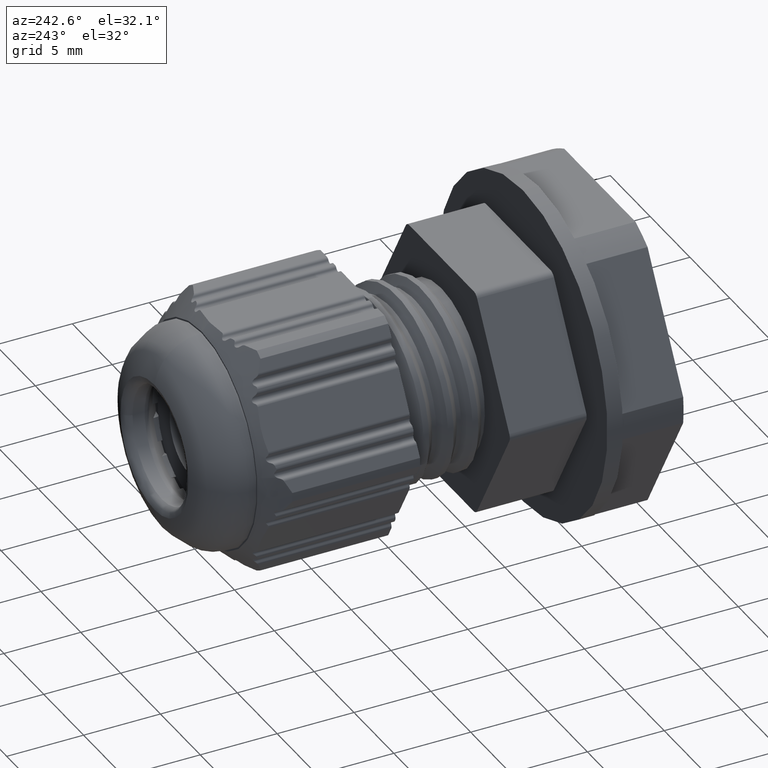
[diagram: clean part render]
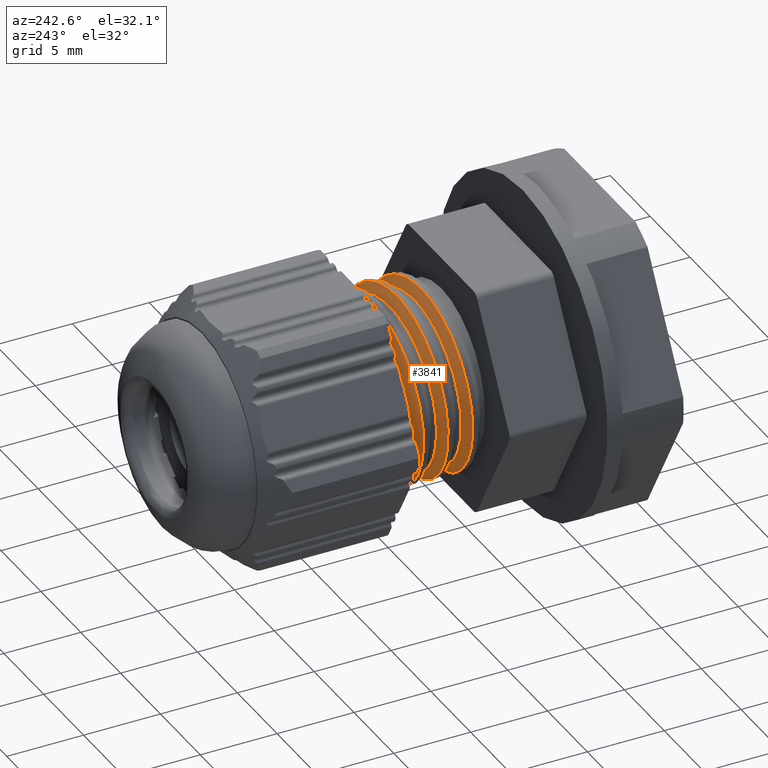
[diagram: same view with one face highlighted and labeled with its STEP entity id]
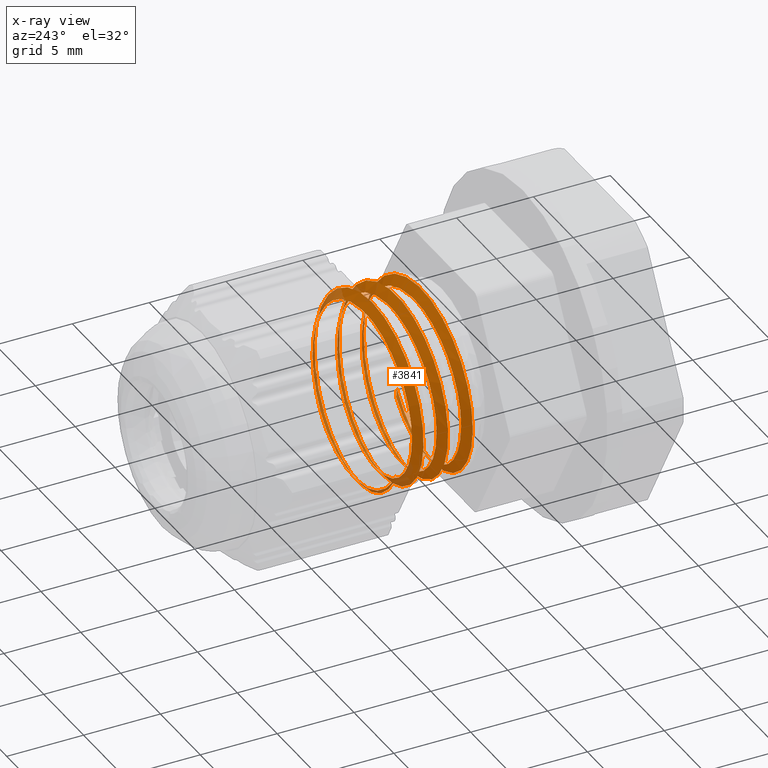
[diagram: x-ray of the same camera — body ghosted, the highlighted face saturated]
A machine part, auxiliary view. The second image highlights one B-rep face of the part: STEP entity #3841.
The next image is the same camera in x-ray: the body ghosted, the highlighted face saturated — about 19% of this face is hidden behind the body in this view.
In plain terms, the highlighted face is a freeform B-spline surface patch.
Its self-contained STEP definition (entity closure, byte-faithful):
#4 =( BOUNDED_SURFACE ( )  B_SPLINE_SURFACE ( 1, 2, ( 
 ( #10818, #10789, #10806, #10819, #10822, #10804, #10790, #10823, #10802, #10824, #10827, #10792, #10796, #10828, #10808, #10813, #10817, #10794, #10795, #10814, #10803, #10809, #10810, #10811, #10815, #10950, #10971, #11021, #11040, #10600, #10665, #10725, #10705, #10726, #10743, #10748, #9685, #9662, #9670, #9674, #9659, #9645, #9675, #9657, #9676, #9654, #9667, #9671, #9679, #9680, #9672, #9646, #9651, #9647, #9664, #9648, #9656, #9681, #9652, #9658, #9683, #9649, #9663, #9673, #9669, #9684, #9650, #9665, #9666, #9655, #9677, #9653, #9682, #9660, #9668, #9678, #9661, #9254, #9211, #9210, #9229, #9219, #9235, #9223, #9257, #9228, #9251, #9252, #9253, #9226, #9209, #9242, #9239, #9218, #9255, #9243, #9212 ),
 ( #9256, #9204, #9213, #9227, #9258, #9207, #9224, #9244, #9260, #9232, #9225, #9230, #9231, #9249, #9202, #9221, #9259, #9214, #9248, #9217, #9240, #9220, #9261, #9234, #9222, #9262, #9233, #9236, #9205, #9237, #9238, #9241, #9200, #9215, #9199, #9201, #9250, #9203, #9206, #9208, #9216, #9246, #9245, #9247, #9274, #9277, #9275, #9276, #9278, #9271, #9279, #9263, #9273, #9264, #9265, #9266, #9267, #9268, #9269, #9270, #9272, #9282, #9280, #9281, #9283, #9284, #9290, #9298, #9286, #9299, #9291, #9289, #9292, #9307, #9315, #9300, #9301, #9302, #9308, #9287, #9324, #9293, #9311, #9309, #9288, #9304, #9303, #9319, #9294, #9305, #9318, #9295, #9323, #9320, #9296, #9297, #9312 ) ),
 .UNSPECIFIED., .F., .F., .T. ) 
 B_SPLINE_SURFACE_WITH_KNOTS ( ( 2, 2 ),
 ( 3, 2, 2, 2, 2, 2, 2, 2, 2, 2, 2, 2, 2, 2, 2, 2, 2, 2, 2, 2, 2, 2, 2, 2, 2, 2, 2, 2, 2, 2, 2, 2, 2, 2, 2, 2, 2, 2, 2, 2, 2, 2, 2, 2, 2, 2, 2, 2, 3 ),
 ( 0.0000000000000000000, 1.000000000000000000 ),
 ( 0.0000000000000000000, 0.02083333333333333200, 0.04166666666666666400, 0.06250000000000000000, 0.08333333333333332900, 0.1041666666666666700, 0.1250000000000000000, 0.1458333333333333400, 0.1666666666666666600, 0.1875000000000000000, 0.2083333333333333400, 0.2291666666666666600, 0.2500000000000000000, 0.2708333333333333100, 0.2916666666666666900, 0.3125000000000000000, 0.3333333333333333100, 0.3541666666666666900, 0.3750000000000000000, 0.3958333333333333100, 0.4166666666666666900, 0.4375000000000000000, 0.4583333333333333100, 0.4791666666666666900, 0.5000000000000000000, 0.5208333333333333700, 0.5416666666666666300, 0.5625000000000000000, 0.5833333333333333700, 0.6041666666666666300, 0.6250000000000000000, 0.6458333333333333700, 0.6666666666666666300, 0.6875000000000000000, 0.7083333333333333700, 0.7291666666666666300, 0.7500000000000000000, 0.7708333333333333700, 0.7916666666666666300, 0.8125000000000000000, 0.8333333333333333700, 0.8541666666666666300, 0.8750000000000000000, 0.8958333333333333700, 0.9166666666666666300, 0.9375000000000000000, 0.9583333333333333700, 0.9791666666666666300, 1.000000000000000000 ),
 .UNSPECIFIED. ) 
 GEOMETRIC_REPRESENTATION_ITEM ( )  RATIONAL_B_SPLINE_SURFACE ( (
 ( 1.000000000000000000, 0.9238795325112867400, 1.000000000000000000, 0.9238795325112867400, 1.000000000000000000, 0.9238795325112867400, 1.000000000000000000, 0.9238795325112867400, 1.000000000000000000, 0.9238795325112867400, 1.000000000000000000, 0.9238795325112867400, 1.000000000000000000, 0.9238795325112867400, 1.000000000000000000, 0.9238795325112867400, 1.000000000000000000, 0.9238795325112867400, 1.000000000000000000, 0.9238795325112867400, 1.000000000000000000, 0.9238795325112867400, 1.000000000000000000, 0.9238795325112867400, 1.000000000000000000, 0.9238795325112867400, 1.000000000000000000, 0.9238795325112867400, 1.000000000000000000, 0.9238795325112867400, 1.000000000000000000, 0.9238795325112867400, 1.000000000000000000, 0.9238795325112867400, 1.000000000000000000, 0.9238795325112867400, 1.000000000000000000, 0.9238795325112867400, 1.000000000000000000, 0.9238795325112867400, 1.000000000000000000, 0.9238795325112867400, 1.000000000000000000, 0.9238795325112867400, 1.000000000000000000, 0.9238795325112867400, 1.000000000000000000, 0.9238795325112867400, 1.000000000000000000, 0.9238795325112867400, 1.000000000000000000, 0.9238795325112867400, 1.000000000000000000, 0.9238795325112867400, 1.000000000000000000, 0.9238795325112867400, 1.000000000000000000, 0.9238795325112867400, 1.000000000000000000, 0.9238795325112867400, 1.000000000000000000, 0.9238795325112867400, 1.000000000000000000, 0.9238795325112867400, 1.000000000000000000, 0.9238795325112867400, 1.000000000000000000, 0.9238795325112867400, 1.000000000000000000, 0.9238795325112867400, 1.000000000000000000, 0.9238795325112867400, 1.000000000000000000, 0.9238795325112867400, 1.000000000000000000, 0.9238795325112867400, 1.000000000000000000, 0.9238795325112867400, 1.000000000000000000, 0.9238795325112867400, 1.000000000000000000, 0.9238795325112867400, 1.000000000000000000, 0.9238795325112867400, 1.000000000000000000, 0.9238795325112867400, 1.000000000000000000, 0.9238795325112867400, 1.000000000000000000, 0.9238795325112867400, 1.000000000000000000, 0.9238795325112867400, 1.000000000000000000, 0.9238795325112867400, 1.000000000000000000, 0.9238795325112867400, 1.000000000000000000),
 ( 1.000000000000000000, 0.9238795325112867400, 1.000000000000000000, 0.9238795325112867400, 1.000000000000000000, 0.9238795325112867400, 1.000000000000000000, 0.9238795325112867400, 1.000000000000000000, 0.9238795325112867400, 1.000000000000000000, 0.9238795325112867400, 1.000000000000000000, 0.9238795325112867400, 1.000000000000000000, 0.9238795325112867400, 1.000000000000000000, 0.9238795325112867400, 1.000000000000000000, 0.9238795325112867400, 1.000000000000000000, 0.9238795325112867400, 1.000000000000000000, 0.9238795325112867400, 1.000000000000000000, 0.9238795325112867400, 1.000000000000000000, 0.9238795325112867400, 1.000000000000000000, 0.9238795325112867400, 1.000000000000000000, 0.9238795325112867400, 1.000000000000000000, 0.9238795325112867400, 1.000000000000000000, 0.9238795325112867400, 1.000000000000000000, 0.9238795325112867400, 1.000000000000000000, 0.9238795325112867400, 1.000000000000000000, 0.9238795325112867400, 1.000000000000000000, 0.9238795325112867400, 1.000000000000000000, 0.9238795325112867400, 1.000000000000000000, 0.9238795325112867400, 1.000000000000000000, 0.9238795325112867400, 1.000000000000000000, 0.9238795325112867400, 1.000000000000000000, 0.9238795325112867400, 1.000000000000000000, 0.9238795325112867400, 1.000000000000000000, 0.9238795325112867400, 1.000000000000000000, 0.9238795325112867400, 1.000000000000000000, 0.9238795325112867400, 1.000000000000000000, 0.9238795325112867400, 1.000000000000000000, 0.9238795325112867400, 1.000000000000000000, 0.9238795325112867400, 1.000000000000000000, 0.9238795325112867400, 1.000000000000000000, 0.9238795325112867400, 1.000000000000000000, 0.9238795325112867400, 1.000000000000000000, 0.9238795325112867400, 1.000000000000000000, 0.9238795325112867400, 1.000000000000000000, 0.9238795325112867400, 1.000000000000000000, 0.9238795325112867400, 1.000000000000000000, 0.9238795325112867400, 1.000000000000000000, 0.9238795325112867400, 1.000000000000000000, 0.9238795325112867400, 1.000000000000000000, 0.9238795325112867400, 1.000000000000000000, 0.9238795325112867400, 1.000000000000000000, 0.9238795325112867400, 1.000000000000000000, 0.9238795325112867400, 1.000000000000000000) ) ) 
 REPRESENTATION_ITEM ( '' )  SURFACE ( )  );
#20 =( BOUNDED_CURVE ( )  B_SPLINE_CURVE ( 2, ( #5716, #5717, #5718, #5708, #5715, #5710, #5711, #5719, #5721 ),
 .UNSPECIFIED., .F., .T. ) 
 B_SPLINE_CURVE_WITH_KNOTS ( ( 3, 2, 2, 2, 3 ),
 ( 0.02131421090692816100, 0.02557784295480061700, 0.02984147500267307600, 0.03410510705054552900, 0.03836873909841798800 ),
 .UNSPECIFIED. ) 
 CURVE ( )  GEOMETRIC_REPRESENTATION_ITEM ( )  RATIONAL_B_SPLINE_CURVE ( ( 1.000000000000108800, 0.9238795325111778300, 1.000000000000000000, 0.9238795325112867400, 1.000000000000000000, 0.9238795325112867400, 1.000000000000000000, 0.9238795325113363700, 0.9999999999999503700 ) ) 
 REPRESENTATION_ITEM ( '' )  );
#22 =( BOUNDED_CURVE ( )  B_SPLINE_CURVE ( 2, ( #6069, #6055, #6048 ),
 .UNSPECIFIED., .F., .T. ) 
 B_SPLINE_CURVE_WITH_KNOTS ( ( 3, 3 ),
 ( 2.799526741317257000E-016, 0.004259721291257373400 ),
 .UNSPECIFIED. ) 
 CURVE ( )  GEOMETRIC_REPRESENTATION_ITEM ( )  RATIONAL_B_SPLINE_CURVE ( ( 1.000000000000000000, 0.9238795325112831900, 1.000000000000003600 ) ) 
 REPRESENTATION_ITEM ( '' )  );
#23 =( BOUNDED_CURVE ( )  B_SPLINE_CURVE ( 2, ( #6066, #6045, #6047, #6056, #6059, #6042, #6067, #6030, #6031 ),
 .UNSPECIFIED., .F., .F. ) 
 B_SPLINE_CURVE_WITH_KNOTS ( ( 3, 2, 2, 2, 3 ),
 ( 0.05542330586580935400, 0.05968695720165412300, 0.06395060853749888500, 0.06821425987334364700, 0.07247791120918840900 ),
 .UNSPECIFIED. ) 
 CURVE ( )  GEOMETRIC_REPRESENTATION_ITEM ( )  RATIONAL_B_SPLINE_CURVE ( ( 1.000000000000009300, 0.9238795325112774100, 1.000000000000000000, 0.9238795325112867400, 1.000000000000000000, 0.9238795325112867400, 1.000000000000000000, 0.9238795325113942100, 0.9999999999998925300 ) ) 
 REPRESENTATION_ITEM ( '' )  );
#28 =( BOUNDED_CURVE ( )  B_SPLINE_CURVE ( 2, ( #5922, #5966, #5950, #5970, #5969, #5957, #5975, #5971, #5958 ),
 .UNSPECIFIED., .F., .T. ) 
 B_SPLINE_CURVE_WITH_KNOTS ( ( 3, 2, 2, 2, 3 ),
 ( 0.03836873909841798800, 0.04263238079026582900, 0.04689602248211367100, 0.05115966417396151900, 0.05542330586580935400 ),
 .UNSPECIFIED. ) 
 CURVE ( )  GEOMETRIC_REPRESENTATION_ITEM ( )  RATIONAL_B_SPLINE_CURVE ( ( 1.000000000000053700, 0.9238795325112330000, 1.000000000000000000, 0.9238795325112867400, 1.000000000000000000, 0.9238795325112867400, 1.000000000000000000, 0.9238795325113053900, 0.9999999999999813500 ) ) 
 REPRESENTATION_ITEM ( '' )  );
#29 =( BOUNDED_CURVE ( )  B_SPLINE_CURVE ( 2, ( #6018, #6002, #6026, #6009, #5993, #6006, #6022, #5992, #6027 ),
 .UNSPECIFIED., .F., .T. ) 
 B_SPLINE_CURVE_WITH_KNOTS ( ( 3, 2, 2, 2, 3 ),
 ( 0.07247791120918840900, 0.07674157218905339200, 0.08100523316891837500, 0.08526889414878337200, 0.08953255512864835600 ),
 .UNSPECIFIED. ) 
 CURVE ( )  GEOMETRIC_REPRESENTATION_ITEM ( )  RATIONAL_B_SPLINE_CURVE ( ( 1.000000000000107200, 0.9238795325111794900, 1.000000000000000000, 0.9238795325112867400, 1.000000000000000000, 0.9238795325112867400, 1.000000000000000000, 0.9238795325113389200, 0.9999999999999478200 ) ) 
 REPRESENTATION_ITEM ( '' )  );
#32 =( BOUNDED_CURVE ( )  B_SPLINE_CURVE ( 2, ( #6110, #6143, #6173, #6164, #6144, #6135, #6167, #6141, #6175 ),
 .UNSPECIFIED., .F., .T. ) 
 B_SPLINE_CURVE_WITH_KNOTS ( ( 3, 2, 2, 2, 3 ),
 ( 0.004259721291257373400, 0.008523343695175069500, 0.01278696609909276700, 0.01705058850301046500, 0.02131421090692816100 ),
 .UNSPECIFIED. ) 
 CURVE ( )  GEOMETRIC_REPRESENTATION_ITEM ( )  RATIONAL_B_SPLINE_CURVE ( ( 1.000000000000017100, 0.9238795325112694200, 1.000000000000000000, 0.9238795325112867400, 1.000000000000000000, 0.9238795325112867400, 1.000000000000000000, 0.9238795325113996500, 0.9999999999998870900 ) ) 
 REPRESENTATION_ITEM ( '' )  );
#33 =( BOUNDED_CURVE ( )  B_SPLINE_CURVE ( 2, ( #1672, #1692, #1703, #1686, #1687, #1688, #1689, #1690, #1691 ),
 .UNSPECIFIED., .F., .T. ) 
 B_SPLINE_CURVE_WITH_KNOTS ( ( 3, 2, 2, 2, 3 ),
 ( 0.08953255512864835600, 0.09379209755420883600, 0.09805163997976931700, 0.1023111824053298000, 0.1032748852441877500 ),
 .UNSPECIFIED. ) 
 CURVE ( )  GEOMETRIC_REPRESENTATION_ITEM ( )  RATIONAL_B_SPLINE_CURVE ( ( 1.000000000000052600, 0.9238795325112342200, 1.000000000000000000, 0.9238795325112867400, 1.000000000000000000, 0.9238795325112867400, 1.000000000000000000, 0.9827780772474838900, 0.9733489238532908600 ) ) 
 REPRESENTATION_ITEM ( '' )  );
#47 =( BOUNDED_CURVE ( )  B_SPLINE_CURVE ( 2, ( #2180, #2254, #2208, #2256, #2202, #2238, #2242, #2267, #2269, #2244, #2182, #2193, #2184, #2221, #2280, #2206, #2262, #2194, #2212, #2273, #2286, #2223, #2282, #2214, #2246, #2284, #2225, #2227, #2230, #2248, #2250, #2264, #2297, #2295, #2382, #2363, #2333, #2308, #2373, #2388, #2288, #2331, #2392, #2341, #2380, #2384, #2386, #2337, #2300, #2302, #2359, #2390, #2339, #2335, #2343 ),
 .UNSPECIFIED., .F., .T. ) 
 B_SPLINE_CURVE_WITH_KNOTS ( ( 3, 2, 2, 2, 2, 2, 2, 2, 2, 2, 2, 2, 2, 2, 2, 2, 2, 2, 2, 2, 2, 2, 2, 2, 2, 2, 2, 3 ),
 ( 0.0000000000000000000, 0.02083333333333333200, 0.04166666666666666400, 0.06250000000000000000, 0.08333333333333332900, 0.1041666666666666700, 0.1250000000000000000, 0.1458333333333333400, 0.1666666666666666600, 0.1875000000000000000, 0.2083333333333333400, 0.2291666666666666300, 0.2500000000000000000, 0.2708333333333333100, 0.2916666666666666900, 0.3125000000000000000, 0.3333333333333333100, 0.3541666666666666900, 0.3750000000000000000, 0.3958333333333333100, 0.4166666666666666900, 0.4375000000000000000, 0.4583333333333332600, 0.4791666666666666900, 0.5000000000000000000, 0.5208333333333333700, 0.5416666666666666300, 0.5533365764077973200 ),
 .UNSPECIFIED. ) 
 CURVE ( )  GEOMETRIC_REPRESENTATION_ITEM ( )  RATIONAL_B_SPLINE_CURVE ( ( 1.000000000000000000, 0.9238795325112867400, 1.000000000000000000, 0.9238795325112867400, 1.000000000000000000, 0.9238795325112867400, 1.000000000000000000, 0.9238795325112867400, 1.000000000000000000, 0.9238795325112867400, 1.000000000000000000, 0.9238795325112867400, 1.000000000000000000, 0.9238795325112867400, 1.000000000000000000, 0.9238795325112867400, 1.000000000000000000, 0.9238795325112867400, 1.000000000000000000, 0.9238795325112867400, 1.000000000000000000, 0.9238795325112867400, 1.000000000000000000, 0.9238795325112867400, 1.000000000000000000, 0.9238795325112867400, 1.000000000000000000, 0.9238795325112867400, 1.000000000000000000, 0.9238795325112867400, 1.000000000000000000, 0.9238795325112867400, 1.000000000000000000, 0.9238795325112867400, 1.000000000000000000, 0.9238795325112867400, 1.000000000000000000, 0.9238795325112867400, 1.000000000000000000, 0.9238795325112867400, 1.000000000000000000, 0.9238795325112867400, 1.000000000000000000, 0.9238795325112867400, 1.000000000000000000, 0.9238795325112867400, 1.000000000000000000, 0.9238795325112867400, 1.000000000000000000, 0.9238795325112867400, 1.000000000000000000, 0.9238795325112867400, 1.000000000000000000, 0.9573606887177941200, 0.9624906811879707600 ) ) 
 REPRESENTATION_ITEM ( '' )  );
#625 = VECTOR ( 'NONE', #2621, 1000.000000000000200 ) ;
#835 = EDGE_LOOP ( 'NONE', ( #1459, #1423, #1470, #1469, #1486, #1500, #1511, #1482, #1516, #1432 ) ) ;
#1423 = ORIENTED_EDGE ( 'NONE', *, *, #3582, .F. ) ;
#1432 = ORIENTED_EDGE ( 'NONE', *, *, #3620, .T. ) ;
#1459 = ORIENTED_EDGE ( 'NONE', *, *, #3644, .F. ) ;
#1469 = ORIENTED_EDGE ( 'NONE', *, *, #3221, .F. ) ;
#1470 = ORIENTED_EDGE ( 'NONE', *, *, #3210, .F. ) ;
#1482 = ORIENTED_EDGE ( 'NONE', *, *, #3220, .F. ) ;
#1486 = ORIENTED_EDGE ( 'NONE', *, *, #3201, .F. ) ;
#1500 = ORIENTED_EDGE ( 'NONE', *, *, #3164, .F. ) ;
#1511 = ORIENTED_EDGE ( 'NONE', *, *, #3238, .F. ) ;
#1516 = ORIENTED_EDGE ( 'NONE', *, *, #3545, .F. ) ;
#1672 = CARTESIAN_POINT ( 'NONE',  ( -1.723043648117412100E-013, 1.689656261431883500, 5.450000000000659200 ) ) ;
#1686 = CARTESIAN_POINT ( 'NONE',  ( 5.449999999998937000, 1.989656261434004100, 2.257463914929861600 ) ) ;
#1687 = CARTESIAN_POINT ( 'NONE',  ( 5.449999999997851700, 2.089656261434003500, -2.614057181307203200E-012 ) ) ;
#1688 = CARTESIAN_POINT ( 'NONE',  ( 5.449999999996770800, 2.189656261434003600, -2.257463914935090400 ) ) ;
#1689 = CARTESIAN_POINT ( 'NONE',  ( 3.853731957463316900, 2.289656261434004100, -3.853731957467014800 ) ) ;
#1690 = CARTESIAN_POINT ( 'NONE',  ( 3.514227176100148200, 2.310924918847225000, -4.193236738829857500 ) ) ;
#1691 = CARTESIAN_POINT ( 'NONE',  ( 3.120593273463724500, 2.333406263480280800, -4.468153715083598600 ) ) ;
#1692 = CARTESIAN_POINT ( 'NONE',  ( 2.257463914933898400, 1.789656261433928600, 5.449999999997962700 ) ) ;
#1703 = CARTESIAN_POINT ( 'NONE',  ( 3.853731957467013900, 1.889656261434003800, 3.853731957463316900 ) ) ;
#2180 = CARTESIAN_POINT ( 'NONE',  ( 4.665630769966974800, -2.979093736519721000, -3.853731957467014800 ) ) ;
#2182 = CARTESIAN_POINT ( 'NONE',  ( -0.5740991559560282300, -1.979093736519721400, 6.024099155956495400 ) ) ;
#2184 = CARTESIAN_POINT ( 'NONE',  ( 3.853731957467013900, -1.779093736519721200, 4.665630769966975700 ) ) ;
#2193 = CARTESIAN_POINT ( 'NONE',  ( 1.921164415521464200, -1.879093736519722200, 6.261898812500429100 ) ) ;
#2194 = CARTESIAN_POINT ( 'NONE',  ( 3.069362727433522200, -1.279093736519721200, -5.786299499412563400 ) ) ;
#2202 = CARTESIAN_POINT ( 'NONE',  ( -3.853731957467014400, -2.579093736519721100, -4.665630769966974800 ) ) ;
#2206 = CARTESIAN_POINT ( 'NONE',  ( 6.261898812500429100, -1.479093736519721400, -1.921164415521463300 ) ) ;
#2208 = CARTESIAN_POINT ( 'NONE',  ( 0.5740991559560277800, -2.779093736519721200, -6.024099155956494500 ) ) ;
#2212 = CARTESIAN_POINT ( 'NONE',  ( 0.5740991559560277800, -1.179093736519721600, -6.024099155956494500 ) ) ;
#2214 = CARTESIAN_POINT ( 'NONE',  ( -6.261898812500429100, -0.6790937365197216000, 1.921164415521467100 ) ) ;
#2221 = CARTESIAN_POINT ( 'NONE',  ( 5.786299499412563400, -1.679093736519721400, 3.069362727433520500 ) ) ;
#2223 = CARTESIAN_POINT ( 'NONE',  ( -5.786299499412563400, -0.8790937365197212200, -3.069362727433522200 ) ) ;
#2225 = CARTESIAN_POINT ( 'NONE',  ( -0.5740991559560282300, -0.3790937365197211100, 6.024099155956495400 ) ) ;
#2227 = CARTESIAN_POINT ( 'NONE',  ( 1.921164415521464200, -0.2790937365197214100, 6.261898812500429100 ) ) ;
#2230 = CARTESIAN_POINT ( 'NONE',  ( 3.853731957467013900, -0.1790937365197214600, 4.665630769966975700 ) ) ;
#2238 = CARTESIAN_POINT ( 'NONE',  ( -5.786299499412563400, -2.479093736519722800, -3.069362727433522200 ) ) ;
#2242 = CARTESIAN_POINT ( 'NONE',  ( -6.024099155956494500, -2.379093736519722700, -0.5740991559560277800 ) ) ;
#2244 = CARTESIAN_POINT ( 'NONE',  ( -3.069362727433525800, -2.079093736519721500, 5.786299499412563400 ) ) ;
#2246 = CARTESIAN_POINT ( 'NONE',  ( -4.665630769966975700, -0.5790937365197211800, 3.853731957467014400 ) ) ;
#2248 = CARTESIAN_POINT ( 'NONE',  ( 5.786299499412563400, -0.07909373651972120800, 3.069362727433520500 ) ) ;
#2250 = CARTESIAN_POINT ( 'NONE',  ( 6.024099155956494500, 0.02090626348027861700, 0.5740991559560286700 ) ) ;
#2254 = CARTESIAN_POINT ( 'NONE',  ( 3.069362727433522200, -2.879093736519723100, -5.786299499412563400 ) ) ;
#2256 = CARTESIAN_POINT ( 'NONE',  ( -1.921164415521467600, -2.679093736519721600, -6.261898812500429100 ) ) ;
#2262 = CARTESIAN_POINT ( 'NONE',  ( 4.665630769966974800, -1.379093736519721300, -3.853731957467014800 ) ) ;
#2264 = CARTESIAN_POINT ( 'NONE',  ( 6.261898812500429100, 0.1209062634802789100, -1.921164415521463300 ) ) ;
#2267 = CARTESIAN_POINT ( 'NONE',  ( -6.261898812500429100, -2.279093736519721200, 1.921164415521467100 ) ) ;
#2269 = CARTESIAN_POINT ( 'NONE',  ( -4.665630769966975700, -2.179093736519721600, 3.853731957467014400 ) ) ;
#2273 = CARTESIAN_POINT ( 'NONE',  ( -1.921164415521467600, -1.079093736519721500, -6.261898812500429100 ) ) ;
#2280 = CARTESIAN_POINT ( 'NONE',  ( 6.024099155956494500, -1.579093736519721500, 0.5740991559560286700 ) ) ;
#2282 = CARTESIAN_POINT ( 'NONE',  ( -6.024099155956494500, -0.7790937365197215800, -0.5740991559560277800 ) ) ;
#2284 = CARTESIAN_POINT ( 'NONE',  ( -3.069362727433525800, -0.4790937365197213100, 5.786299499412563400 ) ) ;
#2286 = CARTESIAN_POINT ( 'NONE',  ( -3.853731957467014400, -0.9790937365197214200, -4.665630769966974800 ) ) ;
#2288 = CARTESIAN_POINT ( 'NONE',  ( -4.665630769966975700, 1.020906263480278600, 3.853731957467014400 ) ) ;
#2295 = CARTESIAN_POINT ( 'NONE',  ( 3.069362727433522200, 0.3209062634802785100, -5.786299499412563400 ) ) ;
#2297 = CARTESIAN_POINT ( 'NONE',  ( 4.665630769966974800, 0.2209062634802787000, -3.853731957467014800 ) ) ;
#2300 = CARTESIAN_POINT ( 'NONE',  ( 4.665630769966974800, 1.820906263480279100, -3.853731957467014800 ) ) ;
#2302 = CARTESIAN_POINT ( 'NONE',  ( 3.069362727433522200, 1.920906263480278700, -5.786299499412563400 ) ) ;
#2308 = CARTESIAN_POINT ( 'NONE',  ( -5.786299499412563400, 0.7209062634802787500, -3.069362727433522200 ) ) ;
#2331 = CARTESIAN_POINT ( 'NONE',  ( -3.069362727433525800, 1.120906263480278900, 5.786299499412563400 ) ) ;
#2333 = CARTESIAN_POINT ( 'NONE',  ( -3.853731957467014400, 0.6209062634802788900, -4.665630769966974800 ) ) ;
#2335 = CARTESIAN_POINT ( 'NONE',  ( -4.898411694563249000, 2.274962834048805500, -3.802743009092041300 ) ) ;
#2337 = CARTESIAN_POINT ( 'NONE',  ( 6.261898812500429100, 1.720906263480279200, -1.921164415521463300 ) ) ;
#2339 = CARTESIAN_POINT ( 'NONE',  ( -3.853731957467014400, 2.220906263480279200, -4.665630769966974800 ) ) ;
#2341 = CARTESIAN_POINT ( 'NONE',  ( 1.921164415521464200, 1.320906263480278600, 6.261898812500429100 ) ) ;
#2343 = CARTESIAN_POINT ( 'NONE',  ( -5.475371868218250200, 2.333406263480283500, -2.576754428809499200 ) ) ;
#2359 = CARTESIAN_POINT ( 'NONE',  ( 0.5740991559560277800, 2.020906263480278600, -6.024099155956494500 ) ) ;
#2363 = CARTESIAN_POINT ( 'NONE',  ( -1.921164415521467600, 0.5209062634802786900, -6.261898812500429100 ) ) ;
#2373 = CARTESIAN_POINT ( 'NONE',  ( -6.024099155956494500, 0.8209062634802785100, -0.5740991559560277800 ) ) ;
#2380 = CARTESIAN_POINT ( 'NONE',  ( 3.853731957467013900, 1.420906263480278900, 4.665630769966975700 ) ) ;
#2382 = CARTESIAN_POINT ( 'NONE',  ( 0.5740991559560277800, 0.4209062634802789300, -6.024099155956494500 ) ) ;
#2384 = CARTESIAN_POINT ( 'NONE',  ( 5.786299499412563400, 1.520906263480278800, 3.069362727433520500 ) ) ;
#2386 = CARTESIAN_POINT ( 'NONE',  ( 6.024099155956494500, 1.620906263480278400, 0.5740991559560286700 ) ) ;
#2388 = CARTESIAN_POINT ( 'NONE',  ( -6.261898812500429100, 0.9209062634802792600, 1.921164415521467100 ) ) ;
#2390 = CARTESIAN_POINT ( 'NONE',  ( -1.921164415521467600, 2.120906263480279600, -6.261898812500429100 ) ) ;
#2392 = CARTESIAN_POINT ( 'NONE',  ( -0.5740991559560282300, 1.220906263480279200, 6.024099155956495400 ) ) ;
#2495 = CARTESIAN_POINT ( 'NONE',  ( 0.05625101846074499100, 2.333406263480283000, -5.667384228264763700 ) ) ;
#2496 = CARTESIAN_POINT ( 'NONE',  ( -0.7855752300281806400, 2.333406263480283500, -5.663034048551407000 ) ) ;
#2498 = CARTESIAN_POINT ( 'NONE',  ( -2.413290261482727800, 2.333406263480283500, -5.295144561914108600 ) ) ;
#2500 = CARTESIAN_POINT ( 'NONE',  ( -4.491263807170906100, 2.333406263480289700, -3.925657764155996400 ) ) ;
#2503 = CARTESIAN_POINT ( 'NONE',  ( 0.4707823571116212000, 2.333406263480276800, -5.624535091064343500 ) ) ;
#2509 = CARTESIAN_POINT ( 'NONE',  ( -3.166295080660256600, 2.333406263480284300, -4.941914856759725100 ) ) ;
#2517 = CARTESIAN_POINT ( 'NONE',  ( 2.437046825939734900, 2.333406263480285200, -4.949597213226421200 ) ) ;
#2522 = CARTESIAN_POINT ( 'NONE',  ( -1.198997827931636200, 2.333406263480283500, -5.615575233702324800 ) ) ;
#2525 = CARTESIAN_POINT ( 'NONE',  ( -5.032674345536546100, 2.333406263480289200, -3.293818135069937400 ) ) ;
#2529 = CARTESIAN_POINT ( 'NONE',  ( -3.521605852189219700, 2.333406263480283900, -4.726135685921605000 ) ) ;
#2545 = CARTESIAN_POINT ( 'NONE',  ( 2.790394989432111800, 2.333406263480277200, -4.729978807127832100 ) ) ;
#2549 = CARTESIAN_POINT ( 'NONE',  ( 3.120593273463724500, 2.333406263480280800, -4.468153715083598600 ) ) ;
#2551 = CARTESIAN_POINT ( 'NONE',  ( 1.283333499835764400, 2.333406263480277200, -5.445464397062906400 ) ) ;
#2553 = CARTESIAN_POINT ( 'NONE',  ( -5.273346842467362600, 2.333406263480283900, -2.946327981368210800 ) ) ;
#2566 = CARTESIAN_POINT ( 'NONE',  ( 1.685646077725668300, 2.333406263480284800, -5.307329261200977500 ) ) ;
#2567 = CARTESIAN_POINT ( 'NONE',  ( -2.011312080302202400, 2.333406263480283000, -5.432811274320814100 ) ) ;
#2568 = CARTESIAN_POINT ( 'NONE',  ( -4.188354413738752900, 2.333406263480283000, -4.213495579541746100 ) ) ;
#2570 = CARTESIAN_POINT ( 'NONE',  ( -5.475371868218250200, 2.333406263480283500, -2.576754428809499200 ) ) ;
#2618 = CARTESIAN_POINT ( 'NONE',  ( 4.259681363716975300, -2.744718737543915000, -3.853731957467014800 ) ) ;
#2621 = DIRECTION ( 'NONE',  ( -0.8660254037844382600, 0.5000000000000004400, 0.0000000000000000000 ) ) ;
#2641 = LINE ( 'NONE', #2618, #625 ) ;
#2870 = CARTESIAN_POINT ( 'NONE',  ( 1.561175825799453500E-012, 0.8896562614318211900, -5.450000000000657400 ) ) ;
#2880 = CARTESIAN_POINT ( 'NONE',  ( -1.355992345673711800E-012, -1.510343738568169900, 5.450000000000877700 ) ) ;
#2894 = CARTESIAN_POINT ( 'NONE',  ( -2.615925203165592500E-013, -0.7103437385680981800, -5.450000000000659200 ) ) ;
#2911 = CARTESIAN_POINT ( 'NONE',  ( 5.612487500886258000E-013, 0.08965626143191542100, 5.450000000000660100 ) ) ;
#2912 = CARTESIAN_POINT ( 'NONE',  ( 3.853731957466742600, -2.510343738567929700, -3.853731957467092500 ) ) ;
#2913 = CARTESIAN_POINT ( 'NONE',  ( -6.276744251958438200E-013, -2.310343738568081400, -5.450000000000877700 ) ) ;
#2919 = CARTESIAN_POINT ( 'NONE',  ( -1.723043648117412100E-013, 1.689656261431883500, 5.450000000000659200 ) ) ;
#3164 = EDGE_CURVE ( 'NONE', #10071, #10117, #20, .T. ) ;
#3201 = EDGE_CURVE ( 'NONE', #10117, #10089, #28, .T. ) ;
#3210 = EDGE_CURVE ( 'NONE', #10077, #10109, #29, .T. ) ;
#3220 = EDGE_CURVE ( 'NONE', #10103, #10095, #22, .T. ) ;
#3221 = EDGE_CURVE ( 'NONE', #10089, #10077, #23, .T. ) ;
#3238 = EDGE_CURVE ( 'NONE', #10095, #10071, #32, .T. ) ;
#3545 = EDGE_CURVE ( 'NONE', #10330, #10103, #2641, .T. ) ;
#3582 = EDGE_CURVE ( 'NONE', #10109, #10378, #33, .T. ) ;
#3620 = EDGE_CURVE ( 'NONE', #10330, #10355, #47, .T. ) ;
#3644 = EDGE_CURVE ( 'NONE', #10378, #10355, #10551, .T. ) ;
#3841 = ADVANCED_FACE ( 'NONE', ( #10820 ), #4, .F. ) ;
#5708 = CARTESIAN_POINT ( 'NONE',  ( 5.449999999998779800, -1.210343738565776700, 2.257463914929482000 ) ) ;
#5710 = CARTESIAN_POINT ( 'NONE',  ( 5.449999999996391500, -1.010343738565777200, -2.257463914935248000 ) ) ;
#5711 = CARTESIAN_POINT ( 'NONE',  ( 3.853731957462937600, -0.9103437385657769900, -3.853731957467014800 ) ) ;
#5715 = CARTESIAN_POINT ( 'NONE',  ( 5.449999999997582600, -1.110343738565777100, -2.882775788840698200E-012 ) ) ;
#5716 = CARTESIAN_POINT ( 'NONE',  ( -1.355992345673711800E-012, -1.510343738568169900, 5.450000000000877700 ) ) ;
#5717 = CARTESIAN_POINT ( 'NONE',  ( 2.257463914932777100, -1.410343738565931900, 5.449999999998862400 ) ) ;
#5718 = CARTESIAN_POINT ( 'NONE',  ( 3.853731957467013900, -1.310343738565777000, 3.853731957462937600 ) ) ;
#5719 = CARTESIAN_POINT ( 'NONE',  ( 2.257463914930609100, -0.8103437385658474000, -5.449999999997652700 ) ) ;
#5721 = CARTESIAN_POINT ( 'NONE',  ( -2.615925203165592500E-013, -0.7103437385680981800, -5.450000000000659200 ) ) ;
#5922 = CARTESIAN_POINT ( 'NONE',  ( -2.615925203165592500E-013, -0.7103437385680981800, -5.450000000000659200 ) ) ;
#5950 = CARTESIAN_POINT ( 'NONE',  ( -3.853731957467014400, -0.5103437385655974500, -3.853731957462626300 ) ) ;
#5957 = CARTESIAN_POINT ( 'NONE',  ( -5.449999999996078900, -0.2103437385655975700, 2.257463914935380300 ) ) ;
#5958 = CARTESIAN_POINT ( 'NONE',  ( 5.612487500886258000E-013, 0.08965626143191542100, 5.450000000000660100 ) ) ;
#5966 = CARTESIAN_POINT ( 'NONE',  ( -2.257463914934160400, -0.6103437385656738100, -5.449999999997298300 ) ) ;
#5969 = CARTESIAN_POINT ( 'NONE',  ( -5.449999999997363200, -0.3103437385655973800, 3.103538595547983400E-012 ) ) ;
#5970 = CARTESIAN_POINT ( 'NONE',  ( -5.449999999998649300, -0.4103437385655973000, -2.257463914929172400 ) ) ;
#5971 = CARTESIAN_POINT ( 'NONE',  ( -2.257463914929597400, -0.01034373856562400100, 5.449999999998225600 ) ) ;
#5975 = CARTESIAN_POINT ( 'NONE',  ( -3.853731957462626300, -0.1103437385655972900, 3.853731957467014400 ) ) ;
#5992 = CARTESIAN_POINT ( 'NONE',  ( -2.257463914931068700, 1.589656261433918200, 5.449999999997761100 ) ) ;
#5993 = CARTESIAN_POINT ( 'NONE',  ( -5.449999999997866800, 1.289656261433991500, 2.600264846713905100E-012 ) ) ;
#6002 = CARTESIAN_POINT ( 'NONE',  ( -2.257463914932650500, 0.9896562614338390000, -5.449999999999225700 ) ) ;
#6006 = CARTESIAN_POINT ( 'NONE',  ( -5.449999999996791200, 1.389656261433991600, 2.257463914935085500 ) ) ;
#6009 = CARTESIAN_POINT ( 'NONE',  ( -5.449999999998945900, 1.189656261433992100, -2.257463914929883900 ) ) ;
#6018 = CARTESIAN_POINT ( 'NONE',  ( 1.561175825799453500E-012, 0.8896562614318211900, -5.450000000000657400 ) ) ;
#6022 = CARTESIAN_POINT ( 'NONE',  ( -3.853731957463337700, 1.489656261433991700, 3.853731957467014400 ) ) ;
#6026 = CARTESIAN_POINT ( 'NONE',  ( -3.853731957467014400, 1.089656261433992000, -3.853731957463337700 ) ) ;
#6027 = CARTESIAN_POINT ( 'NONE',  ( -1.723043648117412100E-013, 1.689656261431883500, 5.450000000000659200 ) ) ;
#6030 = CARTESIAN_POINT ( 'NONE',  ( 2.257463914932307700, 0.7896562614338483700, -5.449999999996497200 ) ) ;
#6031 = CARTESIAN_POINT ( 'NONE',  ( 1.561175825799453500E-012, 0.8896562614318211900, -5.450000000000657400 ) ) ;
#6042 = CARTESIAN_POINT ( 'NONE',  ( 5.449999999996774300, 0.5896562614340014100, -2.257463914935088100 ) ) ;
#6045 = CARTESIAN_POINT ( 'NONE',  ( 2.257463914934876700, 0.1896562614339880000, 5.449999999996986600 ) ) ;
#6047 = CARTESIAN_POINT ( 'NONE',  ( 3.853731957467013900, 0.2896562614340011400, 3.853731957463321300 ) ) ;
#6048 = CARTESIAN_POINT ( 'NONE',  ( -6.276744251958438200E-013, -2.310343738568081400, -5.450000000000877700 ) ) ;
#6055 = CARTESIAN_POINT ( 'NONE',  ( 2.257463914930657000, -2.410343738566495200, -5.449999999999377600 ) ) ;
#6056 = CARTESIAN_POINT ( 'NONE',  ( 5.449999999998937900, 0.3896562614340013900, 2.257463914929866100 ) ) ;
#6059 = CARTESIAN_POINT ( 'NONE',  ( 5.449999999997855200, 0.4896562614340011500, -2.611125242040946200E-012 ) ) ;
#6066 = CARTESIAN_POINT ( 'NONE',  ( 5.612487500886258000E-013, 0.08965626143191542100, 5.450000000000660100 ) ) ;
#6067 = CARTESIAN_POINT ( 'NONE',  ( 3.853731957463321300, 0.6896562614340012700, -3.853731957467014800 ) ) ;
#6069 = CARTESIAN_POINT ( 'NONE',  ( 3.853731957466742600, -2.510343738567929700, -3.853731957467092500 ) ) ;
#6110 = CARTESIAN_POINT ( 'NONE',  ( -6.276744251958438200E-013, -2.310343738568081400, -5.450000000000877700 ) ) ;
#6135 = CARTESIAN_POINT ( 'NONE',  ( -5.449999999996089500, -1.810343738565603400, 2.257463914935375900 ) ) ;
#6141 = CARTESIAN_POINT ( 'NONE',  ( -2.257463914931746400, -1.610343738565763700, 5.449999999996090400 ) ) ;
#6143 = CARTESIAN_POINT ( 'NONE',  ( -2.257463914934985500, -2.210343738565628200, -5.449999999996479400 ) ) ;
#6144 = CARTESIAN_POINT ( 'NONE',  ( -5.449999999997371200, -1.910343738565603900, 3.096272485192476600E-012 ) ) ;
#6164 = CARTESIAN_POINT ( 'NONE',  ( -5.449999999998652800, -2.010343738565603600, -2.257463914929182600 ) ) ;
#6167 = CARTESIAN_POINT ( 'NONE',  ( -3.853731957462636500, -1.710343738565603700, 3.853731957467014400 ) ) ;
#6173 = CARTESIAN_POINT ( 'NONE',  ( -3.853731957467014400, -2.110343738565602800, -3.853731957462636500 ) ) ;
#6175 = CARTESIAN_POINT ( 'NONE',  ( -1.355992345673711800E-012, -1.510343738568169900, 5.450000000000877700 ) ) ;
#9199 = CARTESIAN_POINT ( 'NONE',  ( -2.818925648462311500E-014, 0.8896562614318916900, -5.450000000000438900 ) ) ;
#9200 = CARTESIAN_POINT ( 'NONE',  ( 3.853731957466975300, 0.6896562614318916300, -3.853731957467014800 ) ) ;
#9201 = CARTESIAN_POINT ( 'NONE',  ( -2.257463914933578700, 0.9896562614318914500, -5.450000000000428300 ) ) ;
#9202 = CARTESIAN_POINT ( 'NONE',  ( 5.450000000000438900, -1.110343738568108500, -2.732189474663471200E-014 ) ) ;
#9203 = CARTESIAN_POINT ( 'NONE',  ( -5.450000000000451400, 1.189656261431892000, -2.257463914933521400 ) ) ;
#9204 = CARTESIAN_POINT ( 'NONE',  ( 2.257463914933521400, -2.410343738568109000, -5.450000000000451400 ) ) ;
#9205 = CARTESIAN_POINT ( 'NONE',  ( 3.853731957467013900, 0.2896562614318914400, 3.853731957466975300 ) ) ;
#9206 = CARTESIAN_POINT ( 'NONE',  ( -5.450000000000438900, 1.289656261431891400, 2.818925648462311500E-014 ) ) ;
#9207 = CARTESIAN_POINT ( 'NONE',  ( -5.450000000000451400, -2.010343738568108700, -2.257463914933521400 ) ) ;
#9208 = CARTESIAN_POINT ( 'NONE',  ( -5.450000000000428300, 1.389656261431891500, 2.257463914933578700 ) ) ;
#9209 = CARTESIAN_POINT ( 'NONE',  ( -0.5740991559560282300, 6.020906263480279500, 6.024099155956495400 ) ) ;
#9210 = CARTESIAN_POINT ( 'NONE',  ( 6.261898812500430000, 4.920906263480279800, -1.921164415521463600 ) ) ;
#9211 = CARTESIAN_POINT ( 'NONE',  ( 6.024099155956494500, 4.820906263480279300, 0.5740991559560286700 ) ) ;
#9212 = CARTESIAN_POINT ( 'NONE',  ( 4.665630769966974800, 6.620906263480279100, -3.853731957467014800 ) ) ;
#9213 = CARTESIAN_POINT ( 'NONE',  ( -2.818925648462311500E-014, -2.310343738568108500, -5.450000000000438900 ) ) ;
#9214 = CARTESIAN_POINT ( 'NONE',  ( 2.257463914933521400, -0.8103437385681083700, -5.450000000000451400 ) ) ;
#9215 = CARTESIAN_POINT ( 'NONE',  ( 2.257463914933521400, 0.7896562614318914900, -5.450000000000451400 ) ) ;
#9216 = CARTESIAN_POINT ( 'NONE',  ( -3.853731957466975300, 1.489656261431891600, 3.853731957467014400 ) ) ;
#9217 = CARTESIAN_POINT ( 'NONE',  ( -2.257463914933578700, -0.6103437385681086400, -5.450000000000428300 ) ) ;
#9218 = CARTESIAN_POINT ( 'NONE',  ( 5.786299499412563400, 6.320906263480279300, 3.069362727433520500 ) ) ;
#9219 = CARTESIAN_POINT ( 'NONE',  ( 3.069362727433522200, 5.120906263480278200, -5.786299499412563400 ) ) ;
#9220 = CARTESIAN_POINT ( 'NONE',  ( -5.450000000000451400, -0.4103437385681083000, -2.257463914933521400 ) ) ;
#9221 = CARTESIAN_POINT ( 'NONE',  ( 5.450000000000429200, -1.010343738568108700, -2.257463914933574700 ) ) ;
#9222 = CARTESIAN_POINT ( 'NONE',  ( -3.853731957466975300, -0.1103437385681083100, 3.853731957467014400 ) ) ;
#9223 = CARTESIAN_POINT ( 'NONE',  ( -1.921164415521467300, 5.320906263480278400, -6.261898812500430000 ) ) ;
#9224 = CARTESIAN_POINT ( 'NONE',  ( -5.450000000000438900, -1.910343738568109000, 2.818925648462311500E-014 ) ) ;
#9225 = CARTESIAN_POINT ( 'NONE',  ( 2.775557561562891400E-014, -1.510343738568108400, 5.450000000000439800 ) ) ;
#9226 = CARTESIAN_POINT ( 'NONE',  ( -3.069362727433525800, 5.920906263480278000, 5.786299499412563400 ) ) ;
#9227 = CARTESIAN_POINT ( 'NONE',  ( -2.257463914933578700, -2.210343738568108400, -5.450000000000428300 ) ) ;
#9228 = CARTESIAN_POINT ( 'NONE',  ( -5.786299499412563400, 5.520906263480280400, -3.069362727433522200 ) ) ;
#9229 = CARTESIAN_POINT ( 'NONE',  ( 4.665630769966974800, 5.020906263480278600, -3.853731957467014800 ) ) ;
#9230 = CARTESIAN_POINT ( 'NONE',  ( 2.257463914933575100, -1.410343738568108400, 5.450000000000429200 ) ) ;
#9231 = CARTESIAN_POINT ( 'NONE',  ( 3.853731957467013900, -1.310343738568108500, 3.853731957466975300 ) ) ;
#9232 = CARTESIAN_POINT ( 'NONE',  ( -2.257463914933523200, -1.610343738568108300, 5.450000000000451400 ) ) ;
#9233 = CARTESIAN_POINT ( 'NONE',  ( 2.775557561562891400E-014, 0.08965626143189178700, 5.450000000000439800 ) ) ;
#9234 = CARTESIAN_POINT ( 'NONE',  ( -5.450000000000428300, -0.2103437385681085600, 2.257463914933578700 ) ) ;
#9235 = CARTESIAN_POINT ( 'NONE',  ( 0.5740991559560277800, 5.220906263480281400, -6.024099155956494500 ) ) ;
#9236 = CARTESIAN_POINT ( 'NONE',  ( 2.257463914933575100, 0.1896562614318916000, 5.450000000000429200 ) ) ;
#9237 = CARTESIAN_POINT ( 'NONE',  ( 5.450000000000452300, 0.3896562614318916900, 2.257463914933520100 ) ) ;
#9238 = CARTESIAN_POINT ( 'NONE',  ( 5.450000000000438900, 0.4896562614318915600, -2.732189474663471200E-014 ) ) ;
#9239 = CARTESIAN_POINT ( 'NONE',  ( 3.853731957467013900, 6.220906263480280500, 4.665630769966975700 ) ) ;
#9240 = CARTESIAN_POINT ( 'NONE',  ( -3.853731957467014400, -0.5103437385681084400, -3.853731957466975300 ) ) ;
#9241 = CARTESIAN_POINT ( 'NONE',  ( 5.450000000000429200, 0.5896562614318918700, -2.257463914933574700 ) ) ;
#9242 = CARTESIAN_POINT ( 'NONE',  ( 1.921164415521464200, 6.120906263480279100, 6.261898812500430000 ) ) ;
#9243 = CARTESIAN_POINT ( 'NONE',  ( 6.261898812500430000, 6.520906263480278600, -1.921164415521463600 ) ) ;
#9244 = CARTESIAN_POINT ( 'NONE',  ( -5.450000000000428300, -1.810343738568108500, 2.257463914933578700 ) ) ;
#9245 = CARTESIAN_POINT ( 'NONE',  ( 2.775557561562891400E-014, 1.689656261431892400, 5.450000000000439800 ) ) ;
#9246 = CARTESIAN_POINT ( 'NONE',  ( -2.257463914933523200, 1.589656261431892300, 5.450000000000451400 ) ) ;
#9247 = CARTESIAN_POINT ( 'NONE',  ( 2.257463914933575100, 1.789656261431891400, 5.450000000000429200 ) ) ;
#9248 = CARTESIAN_POINT ( 'NONE',  ( -2.818925648462311500E-014, -0.7103437385681084000, -5.450000000000438900 ) ) ;
#9249 = CARTESIAN_POINT ( 'NONE',  ( 5.450000000000452300, -1.210343738568108400, 2.257463914933520100 ) ) ;
#9250 = CARTESIAN_POINT ( 'NONE',  ( -3.853731957467014400, 1.089656261431891900, -3.853731957466975300 ) ) ;
#9251 = CARTESIAN_POINT ( 'NONE',  ( -6.024099155956494500, 5.620906263480278200, -0.5740991559560277800 ) ) ;
#9252 = CARTESIAN_POINT ( 'NONE',  ( -6.261898812500430000, 5.720906263480279600, 1.921164415521466900 ) ) ;
#9253 = CARTESIAN_POINT ( 'NONE',  ( -4.665630769966975700, 5.820906263480279300, 3.853731957467014400 ) ) ;
#9254 = CARTESIAN_POINT ( 'NONE',  ( 5.786299499412563400, 4.720906263480278800, 3.069362727433520500 ) ) ;
#9255 = CARTESIAN_POINT ( 'NONE',  ( 6.024099155956494500, 6.420906263480278900, 0.5740991559560286700 ) ) ;
#9256 = CARTESIAN_POINT ( 'NONE',  ( 3.853731957466975300, -2.510343738568108700, -3.853731957467014800 ) ) ;
#9257 = CARTESIAN_POINT ( 'NONE',  ( -3.853731957467014400, 5.420906263480279800, -4.665630769966974800 ) ) ;
#9258 = CARTESIAN_POINT ( 'NONE',  ( -3.853731957467014400, -2.110343738568108300, -3.853731957466975300 ) ) ;
#9259 = CARTESIAN_POINT ( 'NONE',  ( 3.853731957466975300, -0.9103437385681084600, -3.853731957467014800 ) ) ;
#9260 = CARTESIAN_POINT ( 'NONE',  ( -3.853731957466975300, -1.710343738568108600, 3.853731957467014400 ) ) ;
#9261 = CARTESIAN_POINT ( 'NONE',  ( -5.450000000000438900, -0.3103437385681083700, 2.818925648462311500E-014 ) ) ;
#9262 = CARTESIAN_POINT ( 'NONE',  ( -2.257463914933523200, -0.01034373856810848200, 5.450000000000451400 ) ) ;
#9263 = CARTESIAN_POINT ( 'NONE',  ( -2.257463914933578700, 2.589656261431892800, -5.450000000000428300 ) ) ;
#9264 = CARTESIAN_POINT ( 'NONE',  ( -5.450000000000451400, 2.789656261431891600, -2.257463914933521400 ) ) ;
#9265 = CARTESIAN_POINT ( 'NONE',  ( -5.450000000000438900, 2.889656261431891700, 2.818925648462311500E-014 ) ) ;
#9266 = CARTESIAN_POINT ( 'NONE',  ( -5.450000000000428300, 2.989656261431891800, 2.257463914933578700 ) ) ;
#9267 = CARTESIAN_POINT ( 'NONE',  ( -3.853731957466975300, 3.089656261431891400, 3.853731957467014400 ) ) ;
#9268 = CARTESIAN_POINT ( 'NONE',  ( -2.257463914933523200, 3.189656261431893300, 5.450000000000451400 ) ) ;
#9269 = CARTESIAN_POINT ( 'NONE',  ( 2.775557561562891400E-014, 3.289656261431892000, 5.450000000000439800 ) ) ;
#9270 = CARTESIAN_POINT ( 'NONE',  ( 2.257463914933575100, 3.389656261431891200, 5.450000000000429200 ) ) ;
#9271 = CARTESIAN_POINT ( 'NONE',  ( 2.257463914933521400, 2.389656261431891200, -5.450000000000451400 ) ) ;
#9272 = CARTESIAN_POINT ( 'NONE',  ( 3.853731957467013900, 3.489656261431892700, 3.853731957466975300 ) ) ;
#9273 = CARTESIAN_POINT ( 'NONE',  ( -3.853731957467014400, 2.689656261431892000, -3.853731957466975300 ) ) ;
#9274 = CARTESIAN_POINT ( 'NONE',  ( 3.853731957467013900, 1.889656261431891700, 3.853731957466975300 ) ) ;
#9275 = CARTESIAN_POINT ( 'NONE',  ( 5.450000000000438900, 2.089656261431891400, -2.732189474663471200E-014 ) ) ;
#9276 = CARTESIAN_POINT ( 'NONE',  ( 5.450000000000429200, 2.189656261431891500, -2.257463914933574700 ) ) ;
#9277 = CARTESIAN_POINT ( 'NONE',  ( 5.450000000000452300, 1.989656261431892000, 2.257463914933520100 ) ) ;
#9278 = CARTESIAN_POINT ( 'NONE',  ( 3.853731957466975300, 2.289656261431892000, -3.853731957467014800 ) ) ;
#9279 = CARTESIAN_POINT ( 'NONE',  ( -2.818925648462311500E-014, 2.489656261431892200, -5.450000000000438900 ) ) ;
#9280 = CARTESIAN_POINT ( 'NONE',  ( 5.450000000000438900, 3.689656261431892000, -2.732189474663471200E-014 ) ) ;
#9281 = CARTESIAN_POINT ( 'NONE',  ( 5.450000000000429200, 3.789656261431892500, -2.257463914933574700 ) ) ;
#9282 = CARTESIAN_POINT ( 'NONE',  ( 5.450000000000452300, 3.589656261431893200, 2.257463914933520100 ) ) ;
#9283 = CARTESIAN_POINT ( 'NONE',  ( 3.853731957466975300, 3.889656261431891700, -3.853731957467014800 ) ) ;
#9284 = CARTESIAN_POINT ( 'NONE',  ( 2.257463914933521400, 3.989656261431892200, -5.450000000000451400 ) ) ;
#9286 = CARTESIAN_POINT ( 'NONE',  ( -3.853731957467014400, 4.289656261431892000, -3.853731957466975300 ) ) ;
#9287 = CARTESIAN_POINT ( 'NONE',  ( 5.450000000000429200, 5.389656261431892600, -2.257463914933574700 ) ) ;
#9288 = CARTESIAN_POINT ( 'NONE',  ( -3.853731957467014400, 5.889656261431892600, -3.853731957466975300 ) ) ;
#9289 = CARTESIAN_POINT ( 'NONE',  ( -5.450000000000428300, 4.589656261431894500, 2.257463914933578700 ) ) ;
#9290 = CARTESIAN_POINT ( 'NONE',  ( -2.818925648462311500E-014, 4.089656261431891900, -5.450000000000438900 ) ) ;
#9291 = CARTESIAN_POINT ( 'NONE',  ( -5.450000000000438900, 4.489656261431891300, 2.818925648462311500E-014 ) ) ;
#9292 = CARTESIAN_POINT ( 'NONE',  ( -3.853731957466975300, 4.689656261431892400, 3.853731957467014400 ) ) ;
#9293 = CARTESIAN_POINT ( 'NONE',  ( 2.257463914933521400, 5.589656261431891000, -5.450000000000451400 ) ) ;
#9294 = CARTESIAN_POINT ( 'NONE',  ( -3.853731957466975300, 6.289656261431892000, 3.853731957467014400 ) ) ;
#9295 = CARTESIAN_POINT ( 'NONE',  ( 2.257463914933575100, 6.589656261431891900, 5.450000000000429200 ) ) ;
#9296 = CARTESIAN_POINT ( 'NONE',  ( 5.450000000000438900, 6.889656261431891700, -2.732189474663471200E-014 ) ) ;
#9297 = CARTESIAN_POINT ( 'NONE',  ( 5.450000000000429200, 6.989656261431894000, -2.257463914933574700 ) ) ;
#9298 = CARTESIAN_POINT ( 'NONE',  ( -2.257463914933578700, 4.189656261431891500, -5.450000000000428300 ) ) ;
#9299 = CARTESIAN_POINT ( 'NONE',  ( -5.450000000000451400, 4.389656261431892600, -2.257463914933521400 ) ) ;
#9300 = CARTESIAN_POINT ( 'NONE',  ( 2.257463914933575100, 4.989656261431891300, 5.450000000000429200 ) ) ;
#9301 = CARTESIAN_POINT ( 'NONE',  ( 3.853731957467013900, 5.089656261431892800, 3.853731957466975300 ) ) ;
#9302 = CARTESIAN_POINT ( 'NONE',  ( 5.450000000000452300, 5.189656261431895100, 2.257463914933520100 ) ) ;
#9303 = CARTESIAN_POINT ( 'NONE',  ( -5.450000000000438900, 6.089656261431893600, 2.818925648462311500E-014 ) ) ;
#9304 = CARTESIAN_POINT ( 'NONE',  ( -5.450000000000451400, 5.989656261431892200, -2.257463914933521400 ) ) ;
#9305 = CARTESIAN_POINT ( 'NONE',  ( -2.257463914933523200, 6.389656261431893500, 5.450000000000451400 ) ) ;
#9307 = CARTESIAN_POINT ( 'NONE',  ( -2.257463914933523200, 4.789656261431891200, 5.450000000000451400 ) ) ;
#9308 = CARTESIAN_POINT ( 'NONE',  ( 5.450000000000438900, 5.289656261431892000, -2.732189474663471200E-014 ) ) ;
#9309 = CARTESIAN_POINT ( 'NONE',  ( -2.257463914933578700, 5.789656261431893800, -5.450000000000428300 ) ) ;
#9311 = CARTESIAN_POINT ( 'NONE',  ( -2.818925648462311500E-014, 5.689656261431892400, -5.450000000000438900 ) ) ;
#9312 = CARTESIAN_POINT ( 'NONE',  ( 3.853731957466975300, 7.089656261431894500, -3.853731957467014800 ) ) ;
#9315 = CARTESIAN_POINT ( 'NONE',  ( 2.775557561562891400E-014, 4.889656261431891700, 5.450000000000439800 ) ) ;
#9318 = CARTESIAN_POINT ( 'NONE',  ( 2.775557561562891400E-014, 6.489656261431892200, 5.450000000000439800 ) ) ;
#9319 = CARTESIAN_POINT ( 'NONE',  ( -5.450000000000428300, 6.189656261431894200, 2.257463914933578700 ) ) ;
#9320 = CARTESIAN_POINT ( 'NONE',  ( 5.450000000000452300, 6.789656261431892000, 2.257463914933520100 ) ) ;
#9323 = CARTESIAN_POINT ( 'NONE',  ( 3.853731957467013900, 6.689656261431891500, 3.853731957466975300 ) ) ;
#9324 = CARTESIAN_POINT ( 'NONE',  ( 3.853731957466975300, 5.489656261431891300, -3.853731957467014800 ) ) ;
#9645 = CARTESIAN_POINT ( 'NONE',  ( -3.069362727433525800, 1.120906263480278900, 5.786299499412563400 ) ) ;
#9646 = CARTESIAN_POINT ( 'NONE',  ( -1.921164415521467300, 2.120906263480279600, -6.261898812500430000 ) ) ;
#9647 = CARTESIAN_POINT ( 'NONE',  ( -5.786299499412563400, 2.320906263480278400, -3.069362727433522200 ) ) ;
#9648 = CARTESIAN_POINT ( 'NONE',  ( -6.261898812500430000, 2.520906263480279000, 1.921164415521466900 ) ) ;
#9649 = CARTESIAN_POINT ( 'NONE',  ( 5.786299499412563400, 3.120906263480279100, 3.069362727433520500 ) ) ;
#9650 = CARTESIAN_POINT ( 'NONE',  ( 0.5740991559560277800, 3.620906263480279600, -6.024099155956494500 ) ) ;
#9651 = CARTESIAN_POINT ( 'NONE',  ( -3.853731957467014400, 2.220906263480279200, -4.665630769966974800 ) ) ;
#9652 = CARTESIAN_POINT ( 'NONE',  ( -0.5740991559560282300, 2.820906263480278800, 6.024099155956495400 ) ) ;
#9653 = CARTESIAN_POINT ( 'NONE',  ( -6.261898812500430000, 4.120906263480279100, 1.921164415521466900 ) ) ;
#9654 = CARTESIAN_POINT ( 'NONE',  ( 5.786299499412563400, 1.520906263480279000, 3.069362727433520500 ) ) ;
#9655 = CARTESIAN_POINT ( 'NONE',  ( -5.786299499412563400, 3.920906263480279800, -3.069362727433522200 ) ) ;
#9656 = CARTESIAN_POINT ( 'NONE',  ( -4.665630769966975700, 2.620906263480279600, 3.853731957467014400 ) ) ;
#9657 = CARTESIAN_POINT ( 'NONE',  ( 1.921164415521464200, 1.320906263480278600, 6.261898812500430000 ) ) ;
#9658 = CARTESIAN_POINT ( 'NONE',  ( 1.921164415521464200, 2.920906263480278500, 6.261898812500430000 ) ) ;
#9659 = CARTESIAN_POINT ( 'NONE',  ( -4.665630769966975700, 1.020906263480278600, 3.853731957467014400 ) ) ;
#9660 = CARTESIAN_POINT ( 'NONE',  ( -3.069362727433525800, 4.320906263480278400, 5.786299499412563400 ) ) ;
#9661 = CARTESIAN_POINT ( 'NONE',  ( 3.853731957467013900, 4.620906263480278200, 4.665630769966975700 ) ) ;
#9662 = CARTESIAN_POINT ( 'NONE',  ( -5.786299499412563400, 0.7209062634802787500, -3.069362727433522200 ) ) ;
#9663 = CARTESIAN_POINT ( 'NONE',  ( 6.024099155956494500, 3.220906263480279200, 0.5740991559560286700 ) ) ;
#9664 = CARTESIAN_POINT ( 'NONE',  ( -6.024099155956494500, 2.420906263480278900, -0.5740991559560277800 ) ) ;
#9665 = CARTESIAN_POINT ( 'NONE',  ( -1.921164415521467300, 3.720906263480278800, -6.261898812500430000 ) ) ;
#9666 = CARTESIAN_POINT ( 'NONE',  ( -3.853731957467014400, 3.820906263480278800, -4.665630769966974800 ) ) ;
#9667 = CARTESIAN_POINT ( 'NONE',  ( 6.024099155956494500, 1.620906263480278400, 0.5740991559560286700 ) ) ;
#9668 = CARTESIAN_POINT ( 'NONE',  ( -0.5740991559560282300, 4.420906263480278900, 6.024099155956495400 ) ) ;
#9669 = CARTESIAN_POINT ( 'NONE',  ( 4.665630769966974800, 3.420906263480278900, -3.853731957467014800 ) ) ;
#9670 = CARTESIAN_POINT ( 'NONE',  ( -6.024099155956494500, 0.8209062634802785100, -0.5740991559560277800 ) ) ;
#9671 = CARTESIAN_POINT ( 'NONE',  ( 6.261898812500430000, 1.720906263480278800, -1.921164415521463600 ) ) ;
#9672 = CARTESIAN_POINT ( 'NONE',  ( 0.5740991559560277800, 2.020906263480278600, -6.024099155956494500 ) ) ;
#9673 = CARTESIAN_POINT ( 'NONE',  ( 6.261898812500430000, 3.320906263480278400, -1.921164415521463600 ) ) ;
#9674 = CARTESIAN_POINT ( 'NONE',  ( -6.261898812500430000, 0.9209062634802791500, 1.921164415521466900 ) ) ;
#9675 = CARTESIAN_POINT ( 'NONE',  ( -0.5740991559560282300, 1.220906263480279200, 6.024099155956495400 ) ) ;
#9676 = CARTESIAN_POINT ( 'NONE',  ( 3.853731957467013900, 1.420906263480278900, 4.665630769966975700 ) ) ;
#9677 = CARTESIAN_POINT ( 'NONE',  ( -6.024099155956494500, 4.020906263480278600, -0.5740991559560277800 ) ) ;
#9678 = CARTESIAN_POINT ( 'NONE',  ( 1.921164415521464200, 4.520906263480279500, 6.261898812500430000 ) ) ;
#9679 = CARTESIAN_POINT ( 'NONE',  ( 4.665630769966974800, 1.820906263480279100, -3.853731957467014800 ) ) ;
#9680 = CARTESIAN_POINT ( 'NONE',  ( 3.069362727433522200, 1.920906263480278500, -5.786299499412563400 ) ) ;
#9681 = CARTESIAN_POINT ( 'NONE',  ( -3.069362727433525800, 2.720906263480278800, 5.786299499412563400 ) ) ;
#9682 = CARTESIAN_POINT ( 'NONE',  ( -4.665630769966975700, 4.220906263480280500, 3.853731957467014400 ) ) ;
#9683 = CARTESIAN_POINT ( 'NONE',  ( 3.853731957467013900, 3.020906263480278600, 4.665630769966975700 ) ) ;
#9684 = CARTESIAN_POINT ( 'NONE',  ( 3.069362727433522200, 3.520906263480280400, -5.786299499412563400 ) ) ;
#9685 = CARTESIAN_POINT ( 'NONE',  ( -3.853731957467014400, 0.6209062634802788900, -4.665630769966974800 ) ) ;
#9715 = CARTESIAN_POINT ( 'NONE',  ( 4.665630769966974800, -2.979093736519721000, -3.853731957467014800 ) ) ;
#9762 = CARTESIAN_POINT ( 'NONE',  ( -5.475371868218250200, 2.333406263480283500, -2.576754428809499200 ) ) ;
#9808 = CARTESIAN_POINT ( 'NONE',  ( 3.120593273463724500, 2.333406263480280800, -4.468153715083598600 ) ) ;
#10071 = VERTEX_POINT ( 'NONE', #2880 ) ;
#10077 = VERTEX_POINT ( 'NONE', #2870 ) ;
#10089 = VERTEX_POINT ( 'NONE', #2911 ) ;
#10095 = VERTEX_POINT ( 'NONE', #2913 ) ;
#10103 = VERTEX_POINT ( 'NONE', #2912 ) ;
#10109 = VERTEX_POINT ( 'NONE', #2919 ) ;
#10117 = VERTEX_POINT ( 'NONE', #2894 ) ;
#10330 = VERTEX_POINT ( 'NONE', #9715 ) ;
#10355 = VERTEX_POINT ( 'NONE', #9762 ) ;
#10378 = VERTEX_POINT ( 'NONE', #9808 ) ;
#10551 = B_SPLINE_CURVE_WITH_KNOTS ( 'NONE', 3,
 ( #2549, #2545, #2517, #2566, #2551, #2503, #2495, #2496, #2522, #2567, #2498, #2509, #2529, #2568, #2500, #2525, #2553, #2570 ),
 .UNSPECIFIED., .F., .F.,
 ( 4, 2, 2, 2, 2, 2, 2, 2, 4 ),
 ( 7.995268800559281800E-017, 0.001246264531328113000, 0.002492529062656145700, 0.003738793593984178100, 0.004985058125312211700, 0.006231322656640244900, 0.007477587187968276300, 0.008723851719296309500, 0.009970116250624345300 ),
 .UNSPECIFIED. ) ;
#10600 = CARTESIAN_POINT ( 'NONE',  ( 5.786299499412563400, -0.07909373651972120800, 3.069362727433520500 ) ) ;
#10665 = CARTESIAN_POINT ( 'NONE',  ( 6.024099155956494500, 0.02090626348027861700, 0.5740991559560286700 ) ) ;
#10705 = CARTESIAN_POINT ( 'NONE',  ( 4.665630769966974800, 0.2209062634802787000, -3.853731957467014800 ) ) ;
#10725 = CARTESIAN_POINT ( 'NONE',  ( 6.261898812500430000, 0.1209062634802789300, -1.921164415521463600 ) ) ;
#10726 = CARTESIAN_POINT ( 'NONE',  ( 3.069362727433522200, 0.3209062634802785100, -5.786299499412563400 ) ) ;
#10743 = CARTESIAN_POINT ( 'NONE',  ( 0.5740991559560277800, 0.4209062634802789300, -6.024099155956494500 ) ) ;
#10748 = CARTESIAN_POINT ( 'NONE',  ( -1.921164415521467300, 0.5209062634802786900, -6.261898812500430000 ) ) ;
#10789 = CARTESIAN_POINT ( 'NONE',  ( 3.069362727433522200, -2.879093736519723100, -5.786299499412563400 ) ) ;
#10790 = CARTESIAN_POINT ( 'NONE',  ( -6.024099155956494500, -2.379093736519722700, -0.5740991559560277800 ) ) ;
#10792 = CARTESIAN_POINT ( 'NONE',  ( 1.921164415521464200, -1.879093736519722200, 6.261898812500430000 ) ) ;
#10794 = CARTESIAN_POINT ( 'NONE',  ( 3.069362727433522200, -1.279093736519721500, -5.786299499412563400 ) ) ;
#10795 = CARTESIAN_POINT ( 'NONE',  ( 0.5740991559560277800, -1.179093736519721600, -6.024099155956494500 ) ) ;
#10796 = CARTESIAN_POINT ( 'NONE',  ( 3.853731957467013900, -1.779093736519721200, 4.665630769966975700 ) ) ;
#10802 = CARTESIAN_POINT ( 'NONE',  ( -4.665630769966975700, -2.179093736519721600, 3.853731957467014400 ) ) ;
#10803 = CARTESIAN_POINT ( 'NONE',  ( -3.853731957467014400, -0.9790937365197214200, -4.665630769966974800 ) ) ;
#10804 = CARTESIAN_POINT ( 'NONE',  ( -5.786299499412563400, -2.479093736519722300, -3.069362727433522200 ) ) ;
#10806 = CARTESIAN_POINT ( 'NONE',  ( 0.5740991559560277800, -2.779093736519721200, -6.024099155956494500 ) ) ;
#10808 = CARTESIAN_POINT ( 'NONE',  ( 6.024099155956494500, -1.579093736519721500, 0.5740991559560286700 ) ) ;
#10809 = CARTESIAN_POINT ( 'NONE',  ( -5.786299499412563400, -0.8790937365197212200, -3.069362727433522200 ) ) ;
#10810 = CARTESIAN_POINT ( 'NONE',  ( -6.024099155956494500, -0.7790937365197215800, -0.5740991559560277800 ) ) ;
#10811 = CARTESIAN_POINT ( 'NONE',  ( -6.261898812500430000, -0.6790937365197214900, 1.921164415521466900 ) ) ;
#10813 = CARTESIAN_POINT ( 'NONE',  ( 6.261898812500430000, -1.479093736519721400, -1.921164415521463600 ) ) ;
#10814 = CARTESIAN_POINT ( 'NONE',  ( -1.921164415521467300, -1.079093736519721500, -6.261898812500430000 ) ) ;
#10815 = CARTESIAN_POINT ( 'NONE',  ( -4.665630769966975700, -0.5790937365197211800, 3.853731957467014400 ) ) ;
#10817 = CARTESIAN_POINT ( 'NONE',  ( 4.665630769966974800, -1.379093736519721300, -3.853731957467014800 ) ) ;
#10818 = CARTESIAN_POINT ( 'NONE',  ( 4.665630769966974800, -2.979093736519721400, -3.853731957467014800 ) ) ;
#10819 = CARTESIAN_POINT ( 'NONE',  ( -1.921164415521467300, -2.679093736519721600, -6.261898812500430000 ) ) ;
#10820 = FACE_OUTER_BOUND ( 'NONE', #835, .T. ) ;
#10822 = CARTESIAN_POINT ( 'NONE',  ( -3.853731957467014400, -2.579093736519721100, -4.665630769966974800 ) ) ;
#10823 = CARTESIAN_POINT ( 'NONE',  ( -6.261898812500430000, -2.279093736519721200, 1.921164415521466900 ) ) ;
#10824 = CARTESIAN_POINT ( 'NONE',  ( -3.069362727433525800, -2.079093736519721500, 5.786299499412563400 ) ) ;
#10827 = CARTESIAN_POINT ( 'NONE',  ( -0.5740991559560282300, -1.979093736519721400, 6.024099155956495400 ) ) ;
#10828 = CARTESIAN_POINT ( 'NONE',  ( 5.786299499412563400, -1.679093736519721200, 3.069362727433520500 ) ) ;
#10950 = CARTESIAN_POINT ( 'NONE',  ( -3.069362727433525800, -0.4790937365197213700, 5.786299499412563400 ) ) ;
#10971 = CARTESIAN_POINT ( 'NONE',  ( -0.5740991559560282300, -0.3790937365197211100, 6.024099155956495400 ) ) ;
#11021 = CARTESIAN_POINT ( 'NONE',  ( 1.921164415521464200, -0.2790937365197214100, 6.261898812500430000 ) ) ;
#11040 = CARTESIAN_POINT ( 'NONE',  ( 3.853731957467013900, -0.1790937365197214600, 4.665630769966975700 ) ) ;